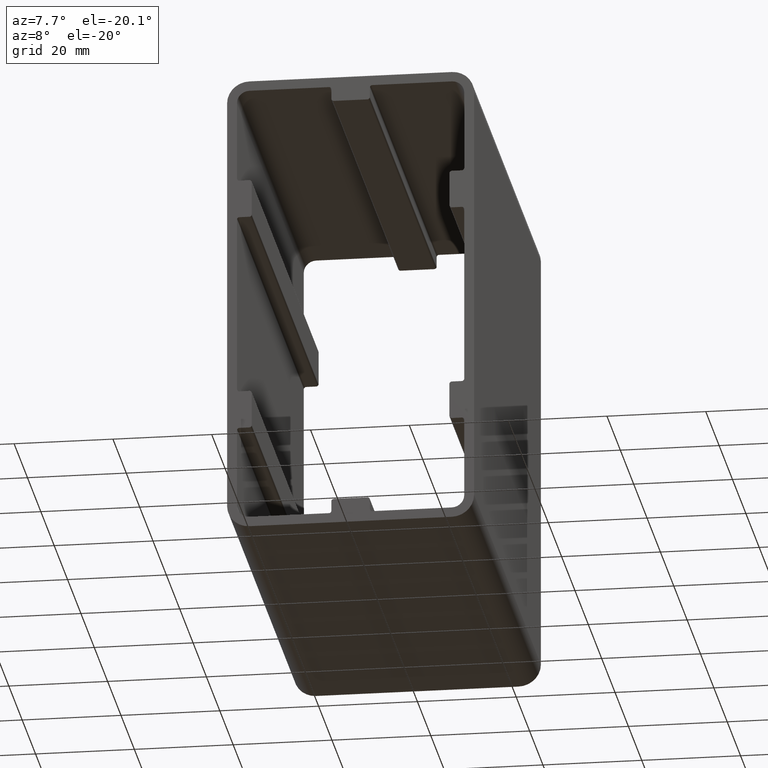
[diagram: clean part render]
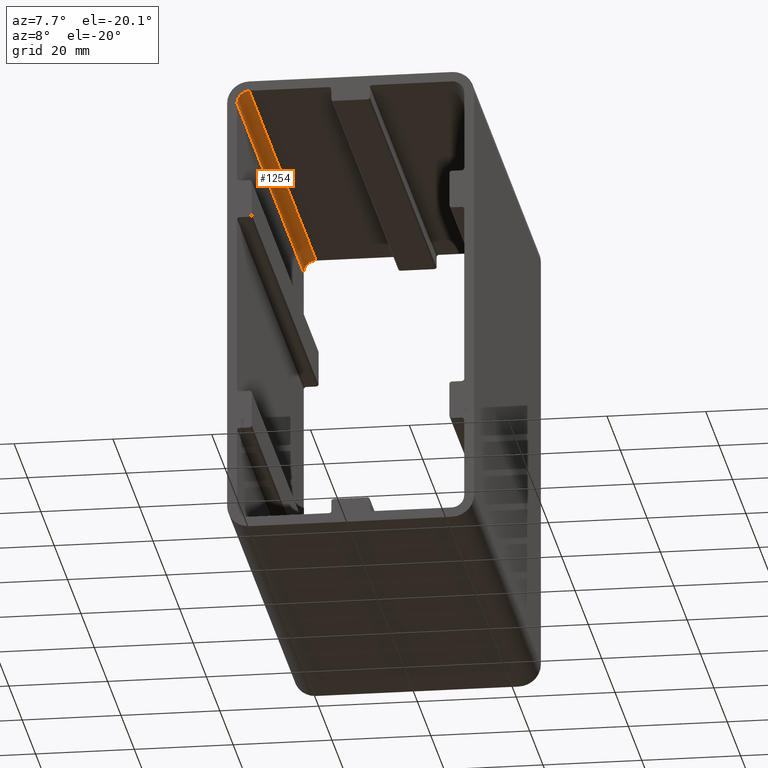
[diagram: same view with one face highlighted and labeled with its STEP entity id]
A machine part, auxiliary view. The second image highlights one B-rep face of the part: STEP entity #1254.
In plain terms, the highlighted cylindrical surface (edge-blend (fillet) strip) has radius 2.5 mm, axis along (0, -1, 0).
Its self-contained STEP definition (entity closure, byte-faithful):
#64=FACE_OUTER_BOUND('',#131,.T.);
#131=EDGE_LOOP('',(#937,#938,#939,#940));
#239=LINE('',#2039,#367);
#240=LINE('',#2040,#368);
#367=VECTOR('',#1621,10.);
#368=VECTOR('',#1622,10.);
#449=CIRCLE('',#1337,2.5);
#480=CIRCLE('',#1380,2.5);
#521=VERTEX_POINT('',#1882);
#522=VERTEX_POINT('',#1884);
#586=VERTEX_POINT('',#2036);
#587=VERTEX_POINT('',#2037);
#650=EDGE_CURVE('',#522,#521,#449,.T.);
#726=EDGE_CURVE('',#586,#587,#480,.T.);
#727=EDGE_CURVE('',#587,#522,#239,.T.);
#728=EDGE_CURVE('',#521,#586,#240,.T.);
#937=ORIENTED_EDGE('',*,*,#726,.T.);
#938=ORIENTED_EDGE('',*,*,#727,.T.);
#939=ORIENTED_EDGE('',*,*,#650,.T.);
#940=ORIENTED_EDGE('',*,*,#728,.T.);
#1216=CYLINDRICAL_SURFACE('',#1379,2.5);
#1254=ADVANCED_FACE('',(#64),#1216,.F.);
#1337=AXIS2_PLACEMENT_3D('',#1885,#1488,#1489);
#1379=AXIS2_PLACEMENT_3D('',#2035,#1617,#1618);
#1380=AXIS2_PLACEMENT_3D('',#2038,#1619,#1620);
#1488=DIRECTION('center_axis',(0.,-1.,0.));
#1489=DIRECTION('ref_axis',(-0.707106781186547,0.,0.707106781186547));
#1617=DIRECTION('center_axis',(0.,-1.,0.));
#1618=DIRECTION('ref_axis',(-0.707106781186547,0.,0.707106781186547));
#1619=DIRECTION('center_axis',(0.,1.,0.));
#1620=DIRECTION('ref_axis',(-0.707106781186547,0.,0.707106781186547));
#1621=DIRECTION('',(0.,-1.,0.));
#1622=DIRECTION('',(0.,1.,0.));
#1882=CARTESIAN_POINT('',(-23.,0.,43.));
#1884=CARTESIAN_POINT('',(-20.5,0.,45.5));
#1885=CARTESIAN_POINT('Origin',(-20.5,0.,43.));
#2035=CARTESIAN_POINT('Origin',(-20.5,100.,43.));
#2036=CARTESIAN_POINT('',(-23.,100.,43.));
#2037=CARTESIAN_POINT('',(-20.5,100.,45.5));
#2038=CARTESIAN_POINT('Origin',(-20.5,100.,43.));
#2039=CARTESIAN_POINT('',(-20.5,100.,45.5));
#2040=CARTESIAN_POINT('',(-23.,100.,43.));